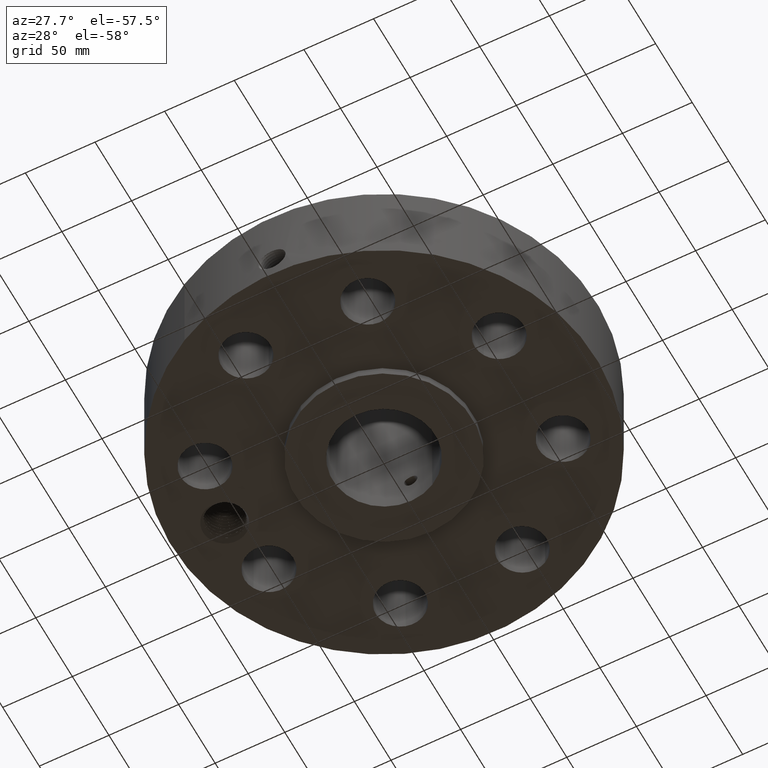
[diagram: clean part render]
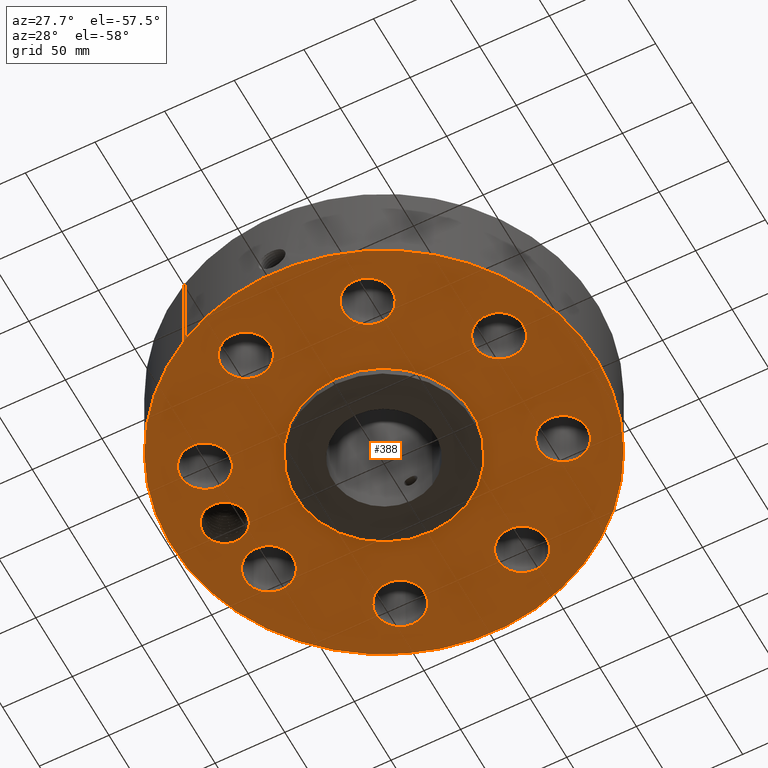
[diagram: same view with one face highlighted and labeled with its STEP entity id]
A machine part, auxiliary view. The second image highlights one B-rep face of the part: STEP entity #388.
In plain terms, the highlighted planar face has unit normal (0, 0, -1).
Its self-contained STEP definition (entity closure, byte-faithful):
#42=AXIS2_PLACEMENT_3D('Circle Axis2P3D',#40,#41,$) ;
#164=AXIS2_PLACEMENT_3D('Plane Axis2P3D',#161,#162,#163) ;
#168=AXIS2_PLACEMENT_3D('Circle Axis2P3D',#166,#167,$) ;
#177=AXIS2_PLACEMENT_3D('Circle Axis2P3D',#175,#176,$) ;
#186=AXIS2_PLACEMENT_3D('Circle Axis2P3D',#184,#185,$) ;
#193=AXIS2_PLACEMENT_3D('Circle Axis2P3D',#191,#192,$) ;
#228=AXIS2_PLACEMENT_3D('Circle Axis2P3D',#226,#227,$) ;
#237=AXIS2_PLACEMENT_3D('Circle Axis2P3D',#235,#236,$) ;
#246=AXIS2_PLACEMENT_3D('Circle Axis2P3D',#244,#245,$) ;
#255=AXIS2_PLACEMENT_3D('Circle Axis2P3D',#253,#254,$) ;
#264=AXIS2_PLACEMENT_3D('Circle Axis2P3D',#262,#263,$) ;
#273=AXIS2_PLACEMENT_3D('Circle Axis2P3D',#271,#272,$) ;
#282=AXIS2_PLACEMENT_3D('Circle Axis2P3D',#280,#281,$) ;
#291=AXIS2_PLACEMENT_3D('Circle Axis2P3D',#289,#290,$) ;
#300=AXIS2_PLACEMENT_3D('Circle Axis2P3D',#298,#299,$) ;
#309=AXIS2_PLACEMENT_3D('Circle Axis2P3D',#307,#308,$) ;
#318=AXIS2_PLACEMENT_3D('Circle Axis2P3D',#316,#317,$) ;
#327=AXIS2_PLACEMENT_3D('Circle Axis2P3D',#325,#326,$) ;
#336=AXIS2_PLACEMENT_3D('Circle Axis2P3D',#334,#335,$) ;
#345=AXIS2_PLACEMENT_3D('Circle Axis2P3D',#343,#344,$) ;
#354=AXIS2_PLACEMENT_3D('Circle Axis2P3D',#352,#353,$) ;
#363=AXIS2_PLACEMENT_3D('Circle Axis2P3D',#361,#362,$) ;
#372=AXIS2_PLACEMENT_3D('Circle Axis2P3D',#370,#371,$) ;
#381=AXIS2_PLACEMENT_3D('Circle Axis2P3D',#379,#380,$) ;
#40=CARTESIAN_POINT('Axis2P3D Location',(0.,0.,0.250000000001)) ;
#44=CARTESIAN_POINT('Vertex',(-2.87655323164,-5.26549537136,0.250000000001)) ;
#46=CARTESIAN_POINT('Vertex',(2.87655323164,5.26549537136,0.250000000001)) ;
#161=CARTESIAN_POINT('Axis2P3D Location',(0.,2.50000000001,0.250000000001)) ;
#166=CARTESIAN_POINT('Axis2P3D Location',(0.,0.,0.250000000001)) ;
#175=CARTESIAN_POINT('Axis2P3D Location',(-4.50000000002,2.79741234551E-016,0.250000000001)) ;
#179=CARTESIAN_POINT('Vertex',(-3.96054999922,-0.294702878581,0.250000000001)) ;
#181=CARTESIAN_POINT('Vertex',(-4.54721275166,-0.612884202835,0.250000000001)) ;
#184=CARTESIAN_POINT('Axis2P3D Location',(-4.50000000002,2.79741234551E-016,0.250000000001)) ;
#188=CARTESIAN_POINT('Vertex',(-5.03945000081,0.294702878581,0.250000000001)) ;
#191=CARTESIAN_POINT('Axis2P3D Location',(-4.50000000002,2.79741234551E-016,0.250000000001)) ;
#195=CARTESIAN_POINT('Vertex',(-5.01202589063,-0.340125825752,0.250000000001)) ;
#199=CARTESIAN_POINT('Control Point',(-4.81645798111,-0.538961409295,0.250000000001)) ;
#200=CARTESIAN_POINT('Control Point',(-4.86410062403,-0.508608563339,0.250000000001)) ;
#201=CARTESIAN_POINT('Control Point',(-4.90821661979,-0.472930296065,0.250000000001)) ;
#202=CARTESIAN_POINT('Control Point',(-4.94800059528,-0.432456220314,0.250000000001)) ;
#203=CARTESIAN_POINT('Control Point',(-4.98276721872,-0.387910417918,0.250000000001)) ;
#204=CARTESIAN_POINT('Control Point',(-5.01202589063,-0.340125825752,0.250000000001)) ;
#205=CARTESIAN_POINT('Vertex',(-4.81645798111,-0.538961409295,0.250000000001)) ;
#209=CARTESIAN_POINT('Control Point',(-4.81645798111,-0.538961409295,0.250000000001)) ;
#210=CARTESIAN_POINT('Control Point',(-4.78937443397,-0.553567911828,0.250000000001)) ;
#211=CARTESIAN_POINT('Control Point',(-4.76141879562,-0.566491804474,0.250000000001)) ;
#212=CARTESIAN_POINT('Control Point',(-4.73273071272,-0.5776595929,0.250000000001)) ;
#213=CARTESIAN_POINT('Control Point',(-4.67892315483,-0.594862022559,0.250000000001)) ;
#214=CARTESIAN_POINT('Control Point',(-4.62367505031,-0.605826723266,0.250000000001)) ;
#215=CARTESIAN_POINT('Control Point',(-4.59827294396,-0.609508625328,0.250000000001)) ;
#216=CARTESIAN_POINT('Control Point',(-4.57275470086,-0.611861518004,0.250000000001)) ;
#217=CARTESIAN_POINT('Control Point',(-4.54721275166,-0.612884202835,0.250000000001)) ;
#226=CARTESIAN_POINT('Axis2P3D Location',(4.15745789632,-1.72207544565,0.250000000001)) ;
#230=CARTESIAN_POINT('Vertex',(4.76298986402,-2.05287906729,0.250000000001)) ;
#232=CARTESIAN_POINT('Vertex',(3.55192592861,-1.39127182401,0.250000000001)) ;
#235=CARTESIAN_POINT('Axis2P3D Location',(4.15745789632,-1.72207544565,0.250000000001)) ;
#244=CARTESIAN_POINT('Axis2P3D Location',(0.,0.,0.250000000001)) ;
#248=CARTESIAN_POINT('Vertex',(1.19856384652,2.19395640473,0.250000000001)) ;
#250=CARTESIAN_POINT('Vertex',(-1.19856384652,-2.19395640473,0.250000000001)) ;
#253=CARTESIAN_POINT('Axis2P3D Location',(0.,0.,0.250000000001)) ;
#262=CARTESIAN_POINT('Axis2P3D Location',(1.72207544565,-4.15745789632,0.250000000001)) ;
#266=CARTESIAN_POINT('Vertex',(1.52781316916,-3.49536865163,0.250000000001)) ;
#268=CARTESIAN_POINT('Vertex',(1.91633772214,-4.81954714101,0.250000000001)) ;
#271=CARTESIAN_POINT('Axis2P3D Location',(1.72207544565,-4.15745789632,0.250000000001)) ;
#280=CARTESIAN_POINT('Axis2P3D Location',(-1.72207544565,-4.15745789632,0.250000000001)) ;
#284=CARTESIAN_POINT('Vertex',(-1.39127182401,-3.55192592861,0.250000000001)) ;
#286=CARTESIAN_POINT('Vertex',(-2.05287906729,-4.76298986402,0.250000000001)) ;
#289=CARTESIAN_POINT('Axis2P3D Location',(-1.72207544565,-4.15745789632,0.250000000001)) ;
#298=CARTESIAN_POINT('Axis2P3D Location',(-4.15745789632,-1.72207544565,0.250000000001)) ;
#302=CARTESIAN_POINT('Vertex',(-3.49536865163,-1.52781316916,0.250000000001)) ;
#304=CARTESIAN_POINT('Vertex',(-4.81954714101,-1.91633772214,0.250000000001)) ;
#307=CARTESIAN_POINT('Axis2P3D Location',(-4.15745789632,-1.72207544565,0.250000000001)) ;
#316=CARTESIAN_POINT('Axis2P3D Location',(-4.15745789632,1.72207544565,0.250000000001)) ;
#320=CARTESIAN_POINT('Vertex',(-3.55192592861,1.39127182401,0.250000000001)) ;
#322=CARTESIAN_POINT('Vertex',(-4.76298986402,2.05287906729,0.250000000001)) ;
#325=CARTESIAN_POINT('Axis2P3D Location',(-4.15745789632,1.72207544565,0.250000000001)) ;
#334=CARTESIAN_POINT('Axis2P3D Location',(-1.72207544565,4.15745789632,0.250000000001)) ;
#338=CARTESIAN_POINT('Vertex',(-1.52781316916,3.49536865163,0.250000000001)) ;
#340=CARTESIAN_POINT('Vertex',(-1.91633772214,4.81954714101,0.250000000001)) ;
#343=CARTESIAN_POINT('Axis2P3D Location',(-1.72207544565,4.15745789632,0.250000000001)) ;
#352=CARTESIAN_POINT('Axis2P3D Location',(1.72207544565,4.15745789632,0.250000000001)) ;
#356=CARTESIAN_POINT('Vertex',(1.39127182401,3.55192592861,0.250000000001)) ;
#358=CARTESIAN_POINT('Vertex',(2.05287906729,4.76298986402,0.250000000001)) ;
#361=CARTESIAN_POINT('Axis2P3D Location',(1.72207544565,4.15745789632,0.250000000001)) ;
#370=CARTESIAN_POINT('Axis2P3D Location',(4.15745789632,1.72207544565,0.250000000001)) ;
#374=CARTESIAN_POINT('Vertex',(3.49536865163,1.52781316916,0.250000000001)) ;
#376=CARTESIAN_POINT('Vertex',(4.81954714101,1.91633772214,0.250000000001)) ;
#379=CARTESIAN_POINT('Axis2P3D Location',(4.15745789632,1.72207544565,0.250000000001)) ;
#41=DIRECTION('Axis2P3D Direction',(0.,0.,-0.0393700787402)) ;
#162=DIRECTION('Axis2P3D Direction',(0.,0.,-0.0393700787402)) ;
#163=DIRECTION('Axis2P3D XDirection',(0.0393700787402,0.,0.)) ;
#167=DIRECTION('Axis2P3D Direction',(0.,0.,-0.0393700787402)) ;
#176=DIRECTION('Axis2P3D Direction',(0.,0.,-0.0393700787402)) ;
#185=DIRECTION('Axis2P3D Direction',(0.,0.,-0.0393700787402)) ;
#192=DIRECTION('Axis2P3D Direction',(0.,0.,-0.0393700787402)) ;
#227=DIRECTION('Axis2P3D Direction',(0.,0.,-0.0393700787402)) ;
#236=DIRECTION('Axis2P3D Direction',(0.,0.,-0.0393700787402)) ;
#245=DIRECTION('Axis2P3D Direction',(0.,0.,-0.0393700787402)) ;
#254=DIRECTION('Axis2P3D Direction',(0.,0.,-0.0393700787402)) ;
#263=DIRECTION('Axis2P3D Direction',(0.,0.,-0.0393700787402)) ;
#272=DIRECTION('Axis2P3D Direction',(0.,0.,-0.0393700787402)) ;
#281=DIRECTION('Axis2P3D Direction',(0.,0.,-0.0393700787402)) ;
#290=DIRECTION('Axis2P3D Direction',(0.,0.,-0.0393700787402)) ;
#299=DIRECTION('Axis2P3D Direction',(0.,0.,-0.0393700787402)) ;
#308=DIRECTION('Axis2P3D Direction',(0.,0.,-0.0393700787402)) ;
#317=DIRECTION('Axis2P3D Direction',(0.,0.,-0.0393700787402)) ;
#326=DIRECTION('Axis2P3D Direction',(0.,0.,-0.0393700787402)) ;
#335=DIRECTION('Axis2P3D Direction',(0.,0.,-0.0393700787402)) ;
#344=DIRECTION('Axis2P3D Direction',(0.,0.,-0.0393700787402)) ;
#353=DIRECTION('Axis2P3D Direction',(0.,0.,-0.0393700787402)) ;
#362=DIRECTION('Axis2P3D Direction',(0.,0.,-0.0393700787402)) ;
#371=DIRECTION('Axis2P3D Direction',(0.,0.,-0.0393700787402)) ;
#380=DIRECTION('Axis2P3D Direction',(0.,0.,-0.0393700787402)) ;
#172=ORIENTED_EDGE('',*,*,#48,.T.) ;
#173=ORIENTED_EDGE('',*,*,#170,.T.) ;
#220=ORIENTED_EDGE('',*,*,#183,.F.) ;
#221=ORIENTED_EDGE('',*,*,#190,.F.) ;
#222=ORIENTED_EDGE('',*,*,#197,.F.) ;
#223=ORIENTED_EDGE('',*,*,#207,.F.) ;
#224=ORIENTED_EDGE('',*,*,#218,.T.) ;
#241=ORIENTED_EDGE('',*,*,#234,.F.) ;
#242=ORIENTED_EDGE('',*,*,#239,.F.) ;
#259=ORIENTED_EDGE('',*,*,#252,.F.) ;
#260=ORIENTED_EDGE('',*,*,#257,.F.) ;
#277=ORIENTED_EDGE('',*,*,#270,.F.) ;
#278=ORIENTED_EDGE('',*,*,#275,.F.) ;
#295=ORIENTED_EDGE('',*,*,#288,.F.) ;
#296=ORIENTED_EDGE('',*,*,#293,.F.) ;
#313=ORIENTED_EDGE('',*,*,#306,.F.) ;
#314=ORIENTED_EDGE('',*,*,#311,.F.) ;
#331=ORIENTED_EDGE('',*,*,#324,.F.) ;
#332=ORIENTED_EDGE('',*,*,#329,.F.) ;
#349=ORIENTED_EDGE('',*,*,#342,.F.) ;
#350=ORIENTED_EDGE('',*,*,#347,.F.) ;
#367=ORIENTED_EDGE('',*,*,#360,.F.) ;
#368=ORIENTED_EDGE('',*,*,#365,.F.) ;
#385=ORIENTED_EDGE('',*,*,#378,.F.) ;
#386=ORIENTED_EDGE('',*,*,#383,.F.) ;
#225=FACE_BOUND('',#219,.T.) ;
#243=FACE_BOUND('',#240,.T.) ;
#261=FACE_BOUND('',#258,.T.) ;
#279=FACE_BOUND('',#276,.T.) ;
#297=FACE_BOUND('',#294,.T.) ;
#315=FACE_BOUND('',#312,.T.) ;
#333=FACE_BOUND('',#330,.T.) ;
#351=FACE_BOUND('',#348,.T.) ;
#369=FACE_BOUND('',#366,.T.) ;
#387=FACE_BOUND('',#384,.T.) ;
#388=ADVANCED_FACE('PartBody',(#174,#225,#243,#261,#279,#297,#315,#333,#351,#369,#387),#165,.T.) ;
#198=B_SPLINE_CURVE_WITH_KNOTS('',5,(#199,#200,#201,#202,#203,#204),.UNSPECIFIED.,.F.,.U.,(6,6),(0.,9.87030348646),.UNSPECIFIED.) ;
#208=B_SPLINE_CURVE_WITH_KNOTS('',5,(#209,#210,#211,#212,#213,#214,#215,#216,#217),.UNSPECIFIED.,.F.,.U.,(6,3,6),(0.,5.37655334505,9.88344737918),.UNSPECIFIED.) ;
#43=CIRCLE('generated circle',#42,6.00000000002) ;
#169=CIRCLE('generated circle',#168,6.00000000002) ;
#178=CIRCLE('generated circle',#177,0.614700000002) ;
#187=CIRCLE('generated circle',#186,0.614700000002) ;
#194=CIRCLE('generated circle',#193,0.614700000002) ;
#229=CIRCLE('generated circle',#228,0.690000000003) ;
#238=CIRCLE('generated circle',#237,0.690000000003) ;
#247=CIRCLE('generated circle',#246,2.50000000001) ;
#256=CIRCLE('generated circle',#255,2.50000000001) ;
#265=CIRCLE('generated circle',#264,0.690000000003) ;
#274=CIRCLE('generated circle',#273,0.690000000003) ;
#283=CIRCLE('generated circle',#282,0.690000000003) ;
#292=CIRCLE('generated circle',#291,0.690000000003) ;
#301=CIRCLE('generated circle',#300,0.690000000003) ;
#310=CIRCLE('generated circle',#309,0.690000000003) ;
#319=CIRCLE('generated circle',#318,0.690000000003) ;
#328=CIRCLE('generated circle',#327,0.690000000003) ;
#337=CIRCLE('generated circle',#336,0.690000000003) ;
#346=CIRCLE('generated circle',#345,0.690000000003) ;
#355=CIRCLE('generated circle',#354,0.690000000003) ;
#364=CIRCLE('generated circle',#363,0.690000000003) ;
#373=CIRCLE('generated circle',#372,0.690000000003) ;
#382=CIRCLE('generated circle',#381,0.690000000003) ;
#48=EDGE_CURVE('',#45,#47,#43,.T.) ;
#170=EDGE_CURVE('',#47,#45,#169,.T.) ;
#183=EDGE_CURVE('',#180,#182,#178,.T.) ;
#190=EDGE_CURVE('',#189,#180,#187,.T.) ;
#197=EDGE_CURVE('',#196,#189,#194,.T.) ;
#207=EDGE_CURVE('',#206,#196,#198,.T.) ;
#218=EDGE_CURVE('',#206,#182,#208,.T.) ;
#234=EDGE_CURVE('',#231,#233,#229,.T.) ;
#239=EDGE_CURVE('',#233,#231,#238,.T.) ;
#252=EDGE_CURVE('',#249,#251,#247,.T.) ;
#257=EDGE_CURVE('',#251,#249,#256,.T.) ;
#270=EDGE_CURVE('',#267,#269,#265,.T.) ;
#275=EDGE_CURVE('',#269,#267,#274,.T.) ;
#288=EDGE_CURVE('',#285,#287,#283,.T.) ;
#293=EDGE_CURVE('',#287,#285,#292,.T.) ;
#306=EDGE_CURVE('',#303,#305,#301,.T.) ;
#311=EDGE_CURVE('',#305,#303,#310,.T.) ;
#324=EDGE_CURVE('',#321,#323,#319,.T.) ;
#329=EDGE_CURVE('',#323,#321,#328,.T.) ;
#342=EDGE_CURVE('',#339,#341,#337,.T.) ;
#347=EDGE_CURVE('',#341,#339,#346,.T.) ;
#360=EDGE_CURVE('',#357,#359,#355,.T.) ;
#365=EDGE_CURVE('',#359,#357,#364,.T.) ;
#378=EDGE_CURVE('',#375,#377,#373,.T.) ;
#383=EDGE_CURVE('',#377,#375,#382,.T.) ;
#171=EDGE_LOOP('',(#172,#173)) ;
#219=EDGE_LOOP('',(#220,#221,#222,#223,#224)) ;
#240=EDGE_LOOP('',(#241,#242)) ;
#258=EDGE_LOOP('',(#259,#260)) ;
#276=EDGE_LOOP('',(#277,#278)) ;
#294=EDGE_LOOP('',(#295,#296)) ;
#312=EDGE_LOOP('',(#313,#314)) ;
#330=EDGE_LOOP('',(#331,#332)) ;
#348=EDGE_LOOP('',(#349,#350)) ;
#366=EDGE_LOOP('',(#367,#368)) ;
#384=EDGE_LOOP('',(#385,#386)) ;
#174=FACE_OUTER_BOUND('',#171,.T.) ;
#165=PLANE('',#164) ;
#45=VERTEX_POINT('',#44) ;
#47=VERTEX_POINT('',#46) ;
#180=VERTEX_POINT('',#179) ;
#182=VERTEX_POINT('',#181) ;
#189=VERTEX_POINT('',#188) ;
#196=VERTEX_POINT('',#195) ;
#206=VERTEX_POINT('',#205) ;
#231=VERTEX_POINT('',#230) ;
#233=VERTEX_POINT('',#232) ;
#249=VERTEX_POINT('',#248) ;
#251=VERTEX_POINT('',#250) ;
#267=VERTEX_POINT('',#266) ;
#269=VERTEX_POINT('',#268) ;
#285=VERTEX_POINT('',#284) ;
#287=VERTEX_POINT('',#286) ;
#303=VERTEX_POINT('',#302) ;
#305=VERTEX_POINT('',#304) ;
#321=VERTEX_POINT('',#320) ;
#323=VERTEX_POINT('',#322) ;
#339=VERTEX_POINT('',#338) ;
#341=VERTEX_POINT('',#340) ;
#357=VERTEX_POINT('',#356) ;
#359=VERTEX_POINT('',#358) ;
#375=VERTEX_POINT('',#374) ;
#377=VERTEX_POINT('',#376) ;